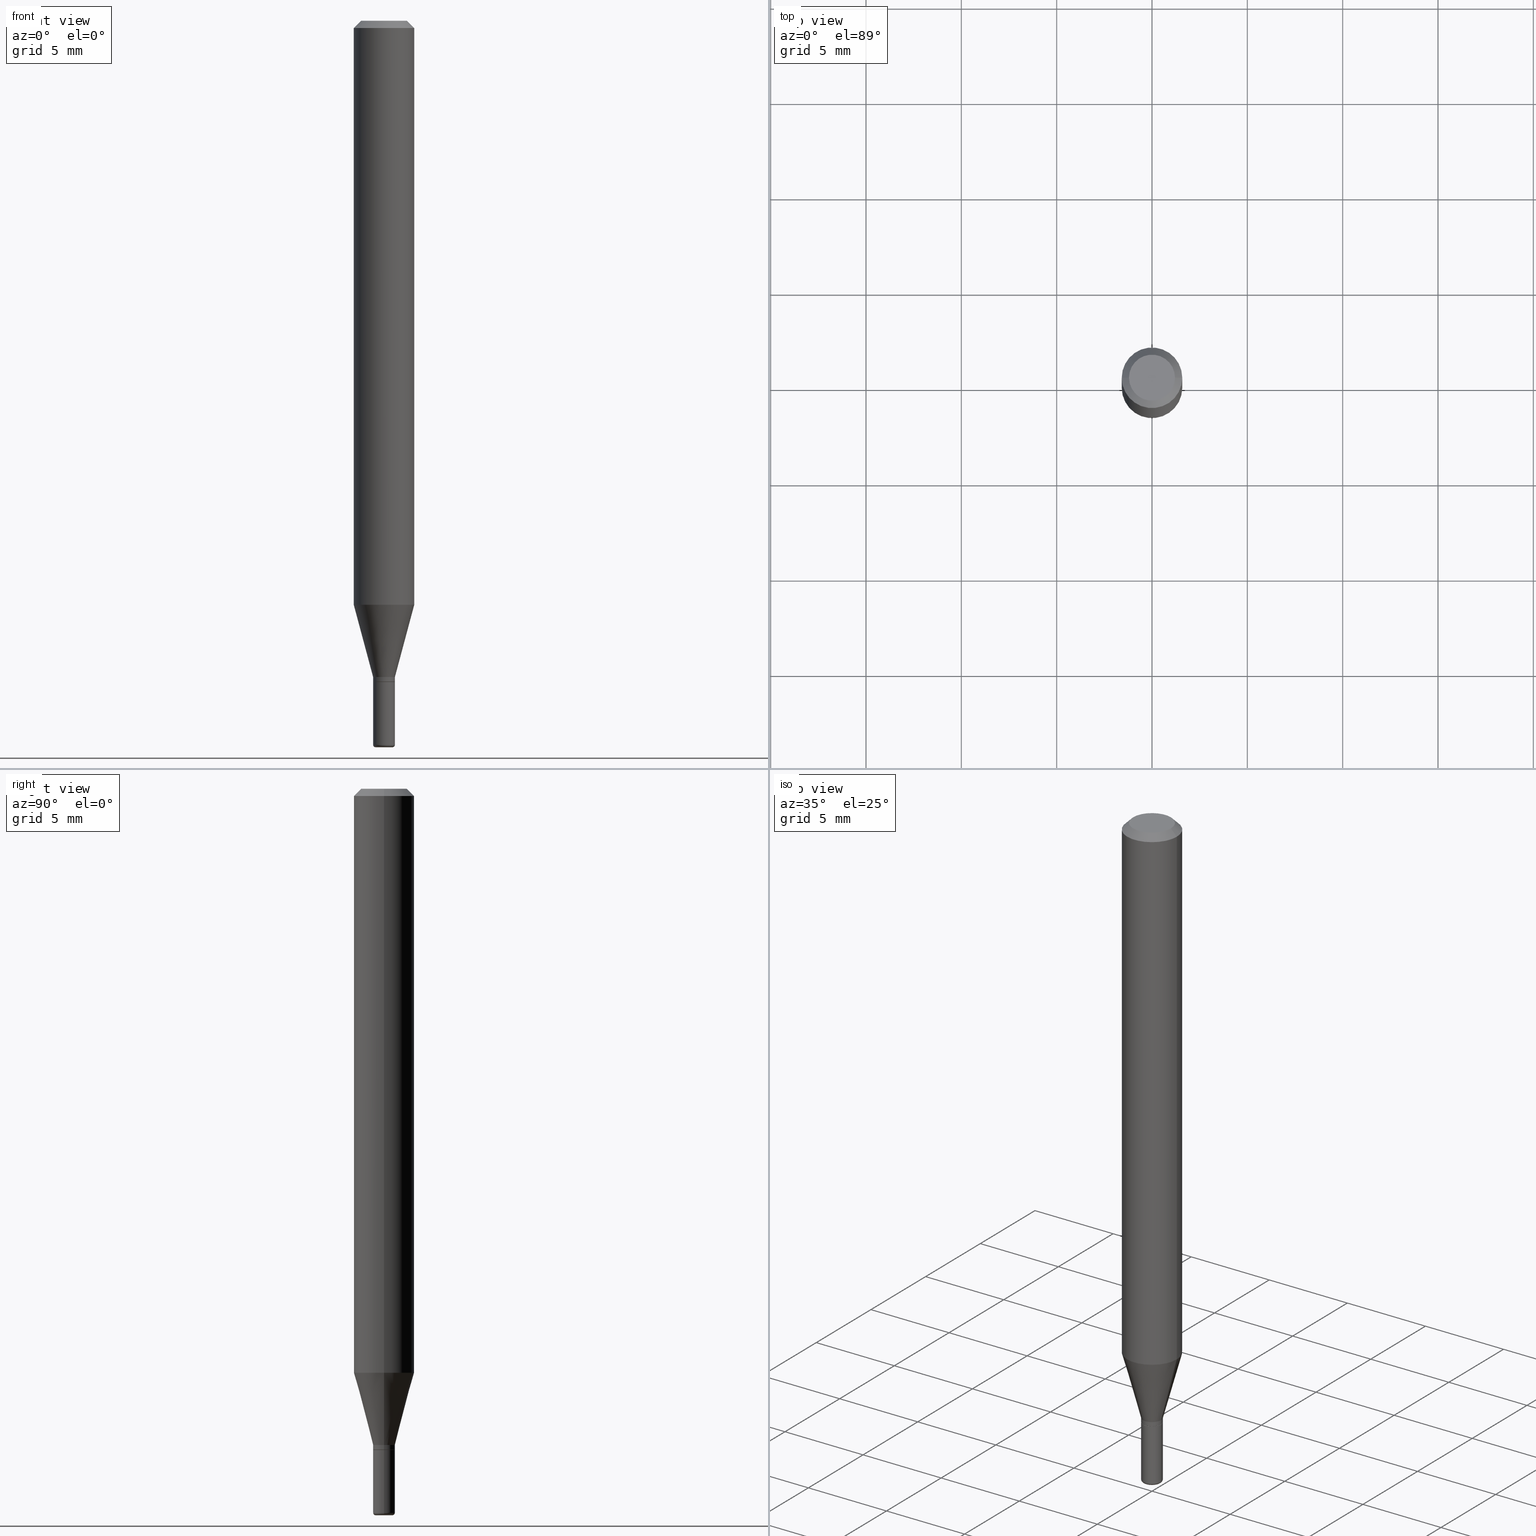
[diagram: canonical four-view strip — front | top / right | iso, engineering-drawing reading convention]
A machine part, canonical four-view strip (front | top / right | iso — engineering-drawing reading convention). The complete STEP part file that produces these views, byte-faithful:
ISO-10303-21;
HEADER;
FILE_DESCRIPTION (( 'STEP AP203' ),
    '1' );
FILE_NAME ('08659.STEP',
    '2024-02-29T20:13:11',
    ( '' ),
    ( '' ),
    'SwSTEP 2.0',
    'SolidWorks 2023',
    '' );
FILE_SCHEMA (( 'CONFIG_CONTROL_DESIGN' ));
ENDSEC;

DATA;
#1 = CARTESIAN_POINT ( 'NONE',  ( 0.02250000000000008937, -1.571166602479416074E-16, 1.097139774554090038E-30 ) ) ;
#2 = APPROVAL_STATUS ( 'not_yet_approved' ) ;
#3 = APPROVAL ( #197, 'UNSPECIFIED' ) ;
#4 = CARTESIAN_POINT ( 'NONE',  ( 3.668203209277706016E-29, -5.237222008264719754E-15, -1.500000000000000444 ) ) ;
#5 = EDGE_CURVE ( 'NONE', #264, #43, #458, .T. ) ;
#6 = CARTESIAN_POINT ( 'NONE',  ( -0.02250000000000008937, 1.598721155460231769E-16, -1.106760395307358334E-30 ) ) ;
#7 = FACE_OUTER_BOUND ( 'NONE', #393, .T. ) ;
#8 = AXIS2_PLACEMENT_3D ( 'NONE', #152, #119, #475 ) ;
#9 = AXIS2_PLACEMENT_3D ( 'NONE', #481, #484, #80 ) ;
#10 = PRODUCT_DEFINITION_FORMATION_WITH_SPECIFIED_SOURCE ( 'ANY', '', #272, .NOT_KNOWN. ) ;
#11 = CLOSED_SHELL ( 'NONE', ( #93, #512, #480, #128, #453, #417, #57, #116, #317, #242, #488, #399 ) ) ;
#12 = CARTESIAN_POINT ( 'NONE',  ( 3.316907271900976589E-16, 0.04750000000000000749, -2.925296391183627249E-17 ) ) ;
#13 = CARTESIAN_POINT ( 'NONE',  ( 3.655975865246779122E-29, -5.219764601570503141E-15, -1.495000000000000107 ) ) ;
#14 = DIRECTION ( 'NONE',  ( 2.438088387897960049E-29, -3.491481338843145188E-15, -1.000000000000000000 ) ) ;
#15 = EDGE_CURVE ( 'NONE', #339, #91, #364, .T. ) ;
#16 = DIRECTION ( 'NONE',  ( 1.000000000000000000, -6.982962677686286432E-15, 0.000000000000000000 ) ) ;
#17 = ADVANCED_BREP_SHAPE_REPRESENTATION ( '08659', ( #36, #371, #138 ), #376 ) ;
#18 = DIRECTION ( 'NONE',  ( -2.438088387897960049E-29, 3.491481338843145188E-15, 1.000000000000000000 ) ) ;
#19 = DIRECTION ( 'NONE',  ( 1.000000000000000000, -6.982962677686283277E-15, 0.000000000000000000 ) ) ;
#20 = CC_DESIGN_PERSON_AND_ORGANIZATION_ASSIGNMENT ( #471, #240, ( #10 ) ) ;
#21 = ORIENTED_EDGE ( 'NONE', *, *, #15, .F. ) ;
#22 = FACE_OUTER_BOUND ( 'NONE', #206, .T. ) ;
#23 = AXIS2_PLACEMENT_3D ( 'NONE', #250, #400, #41 ) ;
#24 = CC_DESIGN_APPROVAL ( #405, ( #10 ) ) ;
#25 = PERSON_AND_ORGANIZATION ( #223, #236 ) ;
#26 = ORIENTED_EDGE ( 'NONE', *, *, #143, .T. ) ;
#27 = DIRECTION ( 'NONE',  ( 1.000000000000000000, -6.982962677686265922E-15, 4.876176775795935793E-29 ) ) ;
#28 = CALENDAR_DATE ( 2024, 29, 2 ) ;
#29 = ORIENTED_EDGE ( 'NONE', *, *, #358, .F. ) ;
#30 = VECTOR ( 'NONE', #121, 39.37007874015748143 ) ;
#31 = SECURITY_CLASSIFICATION_LEVEL ( 'unclassified' ) ;
#32 = ORIENTED_EDGE ( 'NONE', *, *, #499, .F. ) ;
#33 = DATE_TIME_ROLE ( 'classification_date' ) ;
#34 = VERTEX_POINT ( 'NONE', #84 ) ;
#35 = DIRECTION ( 'NONE',  ( -2.445468806185136597E-29, 3.491481338843145583E-15, 1.000000000000000000 ) ) ;
#36 = MANIFOLD_SOLID_BREP ( 'Body-Move/Copy2[1]', #166 ) ;
#37 = CARTESIAN_POINT ( 'NONE',  ( 0.04750000000000000749, -4.035134999187568762E-16, 2.731847993664288856E-16 ) ) ;
#38 = AXIS2_PLACEMENT_3D ( 'NONE', #440, #437, #394 ) ;
#39 = DIRECTION ( 'NONE',  ( 0.2588190451025206840, 1.565188264969626504E-15, 0.9659258262890682012 ) ) ;
#40 = EDGE_CURVE ( 'NONE', #313, #43, #401, .T. ) ;
#41 = DIRECTION ( 'NONE',  ( 1.000000000000000000, -6.982962677686266711E-15, 0.000000000000000000 ) ) ;
#42 = CARTESIAN_POINT ( 'NONE',  ( -0.02249999999999999917, -4.832946198999675921E-15, -1.364999999999999991 ) ) ;
#43 = VERTEX_POINT ( 'NONE', #42 ) ;
#44 = LINE ( 'NONE', #284, #30 ) ;
#45 = DIRECTION ( 'NONE',  ( 1.000000000000000000, -6.982962677686250144E-15, 0.000000000000000000 ) ) ;
#46 = AXIS2_PLACEMENT_3D ( 'NONE', #123, #326, #253 ) ;
#47 = CARTESIAN_POINT ( 'NONE',  ( 3.336842186039618474E-29, -4.764126286851472566E-15, -1.364499999999999824 ) ) ;
#48 = EDGE_CURVE ( 'NONE', #112, #313, #192, .T. ) ;
#49 = FACE_OUTER_BOUND ( 'NONE', #309, .T. ) ;
#50 = CARTESIAN_POINT ( 'NONE',  ( 0.02200000000000008546, -4.919497206429991905E-15, -1.364999999999999991 ) ) ;
#51 = CIRCLE ( 'NONE', #156, 0.02250000000000008937 ) ;
#52 = APPROVAL_PERSON_ORGANIZATION ( #144, #94, #99 ) ;
#53 = EDGE_CURVE ( 'NONE', #106, #356, #478, .T. ) ;
#54 = EDGE_LOOP ( 'NONE', ( #251, #174 ) ) ;
#55 = CYLINDRICAL_SURFACE ( 'NONE', #199, 0.02250000000000008590 ) ;
#56 = DESIGN_CONTEXT ( 'detailed design', #154, 'design' ) ;
#57 = ADVANCED_FACE ( 'NONE', ( #135 ), #102, .T. ) ;
#58 = DIRECTION ( 'NONE',  ( -2.445468806185136877E-29, 3.491481338843145188E-15, 1.000000000000000000 ) ) ;
#59 = ORIENTED_EDGE ( 'NONE', *, *, #367, .F. ) ;
#60 = CARTESIAN_POINT ( 'NONE',  ( 3.338064920442711836E-29, -4.765872027520893280E-15, -1.364999999999999991 ) ) ;
#61 = VERTEX_POINT ( 'NONE', #145 ) ;
#62 = CIRCLE ( 'NONE', #474, 0.02250000000000008937 ) ;
#63 = CARTESIAN_POINT ( 'NONE',  ( 3.668203209277632395E-31, -5.237222008264614861E-17, -0.01499999999999970281 ) ) ;
#64 = ORIENTED_EDGE ( 'NONE', *, *, #193, .T. ) ;
#65 = ORIENTED_EDGE ( 'NONE', *, *, #299, .T. ) ;
#66 = EDGE_CURVE ( 'NONE', #339, #71, #62, .T. ) ;
#67 = DIRECTION ( 'NONE',  ( 1.000000000000000000, -6.982962677686261977E-15, 0.000000000000000000 ) ) ;
#68 = ORIENTED_EDGE ( 'NONE', *, *, #74, .T. ) ;
#69 = ORIENTED_EDGE ( 'NONE', *, *, #262, .F. ) ;
#70 = VECTOR ( 'NONE', #169, 39.37007874015748143 ) ;
#71 = VERTEX_POINT ( 'NONE', #327 ) ;
#72 = EDGE_CURVE ( 'NONE', #388, #339, #291, .T. ) ;
#73 = DIRECTION ( 'NONE',  ( -2.445468806185136597E-29, 3.491481338843145583E-15, 1.000000000000000000 ) ) ;
#74 = EDGE_CURVE ( 'NONE', #507, #464, #415, .T. ) ;
#75 = PERSON_AND_ORGANIZATION_ROLE ( 'creator' ) ;
#76 = FACE_OUTER_BOUND ( 'NONE', #302, .T. ) ;
#77 = COORDINATED_UNIVERSAL_TIME_OFFSET ( 5, 0, .BEHIND. ) ;
#78 = LINE ( 'NONE', #1, #305 ) ;
#79 = CONICAL_SURFACE ( 'NONE', #146, 0.02250000000000007896, 0.2617993877991494078 ) ;
#80 = DIRECTION ( 'NONE',  ( 1.000000000000000000, -6.982962677686255667E-15, 0.000000000000000000 ) ) ;
#81 = DIRECTION ( 'NONE',  ( -1.000000000000000000, 7.105427357601055501E-15, 0.000000000000000000 ) ) ;
#82 = EDGE_CURVE ( 'NONE', #313, #172, #392, .T. ) ;
#83 = DIRECTION ( 'NONE',  ( 1.000000000000000000, -6.982962677686261977E-15, 0.000000000000000000 ) ) ;
#84 = CARTESIAN_POINT ( 'NONE',  ( -0.02200000000000008546, -4.606903398479559111E-15, -1.364999999999999991 ) ) ;
#85 = FACE_OUTER_BOUND ( 'NONE', #386, .T. ) ;
#86 = DIRECTION ( 'NONE',  ( -2.445468806185136597E-29, 3.491481338843145583E-15, 1.000000000000000000 ) ) ;
#87 = VECTOR ( 'NONE', #286, 39.37007874015748143 ) ;
#88 = CC_DESIGN_APPROVAL ( #3, ( #468 ) ) ;
#89 = ADVANCED_FACE ( 'NONE', ( #254 ), #216, .T. ) ;
#90 = CARTESIAN_POINT ( 'NONE',  ( -0.06250000000000000000, -1.686967792252668322E-15, -0.01499999999999970281 ) ) ;
#91 = VERTEX_POINT ( 'NONE', #310 ) ;
#92 = FACE_OUTER_BOUND ( 'NONE', #337, .T. ) ;
#93 = ADVANCED_FACE ( 'NONE', ( #110 ), #97, .T. ) ;
#94 = APPROVAL ( #111, 'UNSPECIFIED' ) ;
#95 = DIRECTION ( 'NONE',  ( -2.445468806185136597E-29, 3.491481338843145583E-15, 1.000000000000000000 ) ) ;
#96 = VECTOR ( 'NONE', #487, 39.37007874015748143 ) ;
#97 = CYLINDRICAL_SURFACE ( 'NONE', #137, 0.02250000000000008590 ) ;
#98 = EDGE_CURVE ( 'NONE', #356, #464, #285, .T. ) ;
#99 = APPROVAL_ROLE ( '' ) ;
#100 = UNCERTAINTY_MEASURE_WITH_UNIT (LENGTH_MEASURE( 1.000000000000000082E-05 ), #308, 'distance_accuracy_value', 'NONE');
#101 = ORIENTED_EDGE ( 'NONE', *, *, #267, .T. ) ;
#102 = CYLINDRICAL_SURFACE ( 'NONE', #227, 0.06250000000000000000 ) ;
#103 = ORIENTED_EDGE ( 'NONE', *, *, #252, .F. ) ;
#104 = DIRECTION ( 'NONE',  ( 1.000000000000000000, -6.982962677686261977E-15, 0.000000000000000000 ) ) ;
#105 = CARTESIAN_POINT ( 'NONE',  ( 0.000000000000000000, 0.000000000000000000, 0.000000000000000000 ) ) ;
#106 = VERTEX_POINT ( 'NONE', #37 ) ;
#107 = EDGE_CURVE ( 'NONE', #106, #186, #283, .T. ) ;
#108 = CIRCLE ( 'NONE', #465, 0.01749999999999999820 ) ;
#109 = CONICAL_SURFACE ( 'NONE', #397, 0.02200000000000008546, 0.7853981633972775267 ) ;
#110 = FACE_OUTER_BOUND ( 'NONE', #439, .T. ) ;
#111 = APPROVAL_STATUS ( 'not_yet_approved' ) ;
#112 = VERTEX_POINT ( 'NONE', #366 ) ;
#113 = CARTESIAN_POINT ( 'NONE',  ( 0.000000000000000000, 0.000000000000000000, 0.000000000000000000 ) ) ;
#114 = ORIENTED_EDGE ( 'NONE', *, *, #82, .T. ) ;
#115 = ORIENTED_EDGE ( 'NONE', *, *, #143, .F. ) ;
#116 = ADVANCED_FACE ( 'NONE', ( #518 ), #340, .T. ) ;
#117 = DIRECTION ( 'NONE',  ( -2.445468806185136877E-29, 3.491481338843145188E-15, 1.000000000000000000 ) ) ;
#118 = VECTOR ( 'NONE', #39, 39.37007874015748854 ) ;
#119 = DIRECTION ( 'NONE',  ( 2.438088387897960049E-29, -3.491481338843145188E-15, -1.000000000000000000 ) ) ;
#120 = FACE_OUTER_BOUND ( 'NONE', #54, .T. ) ;
#121 = DIRECTION ( 'NONE',  ( -2.445468806185136877E-29, 3.491481338843145188E-15, 1.000000000000000000 ) ) ;
#122 = CIRCLE ( 'NONE', #23, 0.06250000000000000000 ) ;
#123 = CARTESIAN_POINT ( 'NONE',  ( 2.948545679060552191E-29, -4.209741784122815192E-15, -1.205717967697245596 ) ) ;
#124 = CARTESIAN_POINT ( 'NONE',  ( 0.02200000000000008546, -4.919497206429991905E-15, -1.364999999999999991 ) ) ;
#125 = CARTESIAN_POINT ( 'NONE',  ( -0.01749999999999999820, -5.095419622812485892E-15, -1.495000000000000107 ) ) ;
#126 = CARTESIAN_POINT ( 'NONE',  ( -0.02250000000000007896, -4.168368836429596353E-15, -1.355000000000000426 ) ) ;
#127 = ORIENTED_EDGE ( 'NONE', *, *, #72, .F. ) ;
#128 = ADVANCED_FACE ( 'NONE', ( #441 ), #321, .T. ) ;
#129 = DIRECTION ( 'NONE',  ( -6.982962677686266711E-15, -1.000000000000000000, 3.491481338843145583E-15 ) ) ;
#130 = DIRECTION ( 'NONE',  ( 1.000000000000000000, -6.982962677686286432E-15, 0.000000000000000000 ) ) ;
#131 = VECTOR ( 'NONE', #341, 39.37007874015748143 ) ;
#132 = CARTESIAN_POINT ( 'NONE',  ( 0.000000000000000000, 0.000000000000000000, 0.000000000000000000 ) ) ;
#133 = CARTESIAN_POINT ( 'NONE',  ( 0.06250000000000000000, -4.364351673553916694E-16, 3.047610484872459871E-30 ) ) ;
#134 = DIRECTION ( 'NONE',  ( -2.445468806185136597E-29, 3.491481338843145583E-15, 1.000000000000000000 ) ) ;
#135 = FACE_OUTER_BOUND ( 'NONE', #503, .T. ) ;
#136 = CARTESIAN_POINT ( 'NONE',  ( 3.338064920442711836E-29, -4.765872027520893280E-15, -1.364999999999999991 ) ) ;
#137 = AXIS2_PLACEMENT_3D ( 'NONE', #224, #383, #27 ) ;
#138 = AXIS2_PLACEMENT_3D ( 'NONE', #113, #277, #231 ) ;
#139 = ORIENTED_EDGE ( 'NONE', *, *, #48, .T. ) ;
#140 = DIRECTION ( 'NONE',  ( -2.445468806185136597E-29, 3.491481338843145583E-15, 1.000000000000000000 ) ) ;
#141 = ORIENTED_EDGE ( 'NONE', *, *, #328, .T. ) ;
#142 = ORIENTED_EDGE ( 'NONE', *, *, #516, .F. ) ;
#143 = EDGE_CURVE ( 'NONE', #91, #249, #435, .T. ) ;
#144 = PERSON_AND_ORGANIZATION ( #223, #236 ) ;
#145 = CARTESIAN_POINT ( 'NONE',  ( 0.01749999999999999820, -5.359423855124228949E-15, -1.500000000000000444 ) ) ;
#146 = AXIS2_PLACEMENT_3D ( 'NONE', #263, #86, #489 ) ;
#147 = DIRECTION ( 'NONE',  ( -2.445468806185136597E-29, 3.491481338843145583E-15, 1.000000000000000000 ) ) ;
#148 = ORIENTED_EDGE ( 'NONE', *, *, #82, .F. ) ;
#149 = CC_DESIGN_PERSON_AND_ORGANIZATION_ASSIGNMENT ( #25, #182, ( #485 ) ) ;
#150 = EDGE_CURVE ( 'NONE', #388, #34, #266, .T. ) ;
#151 = ORIENTED_EDGE ( 'NONE', *, *, #299, .F. ) ;
#152 = CARTESIAN_POINT ( 'NONE',  ( 1.571166602479743698E-16, 0.02249999999999523215, -1.364999999999999991 ) ) ;
#153 = ORIENTED_EDGE ( 'NONE', *, *, #160, .T. ) ;
#154 = APPLICATION_CONTEXT ( 'configuration controlled 3d designs of mechanical parts and assemblies' ) ;
#155 = CARTESIAN_POINT ( 'NONE',  ( 3.338064920442711836E-29, -4.765872027520893280E-15, -1.364999999999999991 ) ) ;
#156 = AXIS2_PLACEMENT_3D ( 'NONE', #47, #494, #372 ) ;
#157 = DIRECTION ( 'NONE',  ( -1.000000000000000000, 6.982962677686266711E-15, 0.000000000000000000 ) ) ;
#158 = COORDINATED_UNIVERSAL_TIME_OFFSET ( 5, 0, .BEHIND. ) ;
#159 = PLANE ( 'NONE',  #375 ) ;
#160 = EDGE_CURVE ( 'NONE', #356, #106, #235, .T. ) ;
#161 = PERSON_AND_ORGANIZATION ( #223, #236 ) ;
#162 = DIRECTION ( 'NONE',  ( 1.000000000000000000, -6.982962677686250144E-15, 0.000000000000000000 ) ) ;
#163 = AXIS2_PLACEMENT_3D ( 'NONE', #196, #395, #245 ) ;
#164 = DIRECTION ( 'NONE',  ( -2.445468806185136597E-29, 3.491481338843145583E-15, 1.000000000000000000 ) ) ;
#165 = AXIS2_PLACEMENT_3D ( 'NONE', #424, #229, #104 ) ;
#166 = CLOSED_SHELL ( 'NONE', ( #89, #276, #181, #234, #384, #287 ) ) ;
#167 = CARTESIAN_POINT ( 'NONE',  ( -0.04750000000000000749, 3.578768372314221353E-16, 2.731847993664239060E-16 ) ) ;
#168 = CARTESIAN_POINT ( 'NONE',  ( -0.06250000000000000000, 4.440892098500626162E-16, -3.074334431409316114E-30 ) ) ;
#169 = DIRECTION ( 'NONE',  ( -2.445468806185136877E-29, 3.491481338843145188E-15, 1.000000000000000000 ) ) ;
#170 = FACE_OUTER_BOUND ( 'NONE', #470, .T. ) ;
#171 = LOCAL_TIME ( 15, 13, 11.00000000000000000, #427 ) ;
#172 = VERTEX_POINT ( 'NONE', #515 ) ;
#173 = AXIS2_PLACEMENT_3D ( 'NONE', #125, #482, #81 ) ;
#174 = ORIENTED_EDGE ( 'NONE', *, *, #176, .T. ) ;
#175 = CARTESIAN_POINT ( 'NONE',  ( 3.313610232380861411E-29, -4.730957214132463998E-15, -1.355000000000000426 ) ) ;
#176 = EDGE_CURVE ( 'NONE', #43, #264, #178, .T. ) ;
#177 = CARTESIAN_POINT ( 'NONE',  ( -0.02200000000000008546, -4.609552625653671101E-15, -1.364999999999999991 ) ) ;
#178 = CIRCLE ( 'NONE', #256, 0.02249999999999999917 ) ;
#179 = LOCAL_TIME ( 15, 13, 11.00000000000000000, #273 ) ;
#180 = ORIENTED_EDGE ( 'NONE', *, *, #293, .T. ) ;
#181 = ADVANCED_FACE ( 'NONE', ( #120 ), #396, .F. ) ;
#182 = PERSON_AND_ORGANIZATION_ROLE ( 'creator' ) ;
#183 = ORIENTED_EDGE ( 'NONE', *, *, #53, .F. ) ;
#184 = DIRECTION ( 'NONE',  ( -2.445468806185136597E-29, 3.491481338843145583E-15, 1.000000000000000000 ) ) ;
#185 =( NAMED_UNIT ( * ) SI_UNIT ( $, .STERADIAN. ) SOLID_ANGLE_UNIT ( ) );
#186 = VERTEX_POINT ( 'NONE', #402 ) ;
#187 = DIRECTION ( 'NONE',  ( 1.000000000000000000, -6.982962677686261977E-15, 0.000000000000000000 ) ) ;
#188 = ORIENTED_EDGE ( 'NONE', *, *, #160, .F. ) ;
#189 = DIMENSIONAL_EXPONENTS ( 1.000000000000000000, 0.000000000000000000, 0.000000000000000000, 0.000000000000000000, 0.000000000000000000, 0.000000000000000000, 0.000000000000000000 ) ;
#190 = CIRCLE ( 'NONE', #9, 0.02250000000000017958 ) ;
#191 = ORIENTED_EDGE ( 'NONE', *, *, #66, .T. ) ;
#192 = CIRCLE ( 'NONE', #173, 0.005000000000000181383 ) ;
#193 = EDGE_CURVE ( 'NONE', #172, #264, #78, .T. ) ;
#194 = SHAPE_DEFINITION_REPRESENTATION ( #426, #17 ) ;
#195 = ORIENTED_EDGE ( 'NONE', *, *, #74, .F. ) ;
#196 = CARTESIAN_POINT ( 'NONE',  ( 0.000000000000000000, 0.000000000000000000, 0.000000000000000000 ) ) ;
#197 = APPROVAL_STATUS ( 'not_yet_approved' ) ;
#198 = DIRECTION ( 'NONE',  ( 1.000000000000000000, -6.982962677686265922E-15, 4.876176775795935793E-29 ) ) ;
#199 = AXIS2_PLACEMENT_3D ( 'NONE', #332, #454, #497 ) ;
#200 = EDGE_CURVE ( 'NONE', #71, #422, #44, .T. ) ;
#201 = DIRECTION ( 'NONE',  ( 1.000000000000000000, -6.982962677686269077E-15, 0.000000000000000000 ) ) ;
#202 = ORIENTED_EDGE ( 'NONE', *, *, #15, .T. ) ;
#203 = PERSON_AND_ORGANIZATION ( #223, #236 ) ;
#204 = CARTESIAN_POINT ( 'NONE',  ( 0.02249999999999999917, -4.922988687768834913E-15, -1.364999999999999991 ) ) ;
#205 = CC_DESIGN_DATE_AND_TIME_ASSIGNMENT ( #365, #33, ( #468 ) ) ;
#206 = EDGE_LOOP ( 'NONE', ( #275, #409, #237, #127 ) ) ;
#207 = CARTESIAN_POINT ( 'NONE',  ( 3.338064920442711836E-29, -4.765872027520893280E-15, -1.364999999999999991 ) ) ;
#208 = CIRCLE ( 'NONE', #486, 0.06250000000000000000 ) ;
#209 = CARTESIAN_POINT ( 'NONE',  ( 0.02250000000000008937, -4.921242947099413409E-15, -1.364499999999999824 ) ) ;
#210 = PLANE ( 'NONE',  #407 ) ;
#211 = ORIENTED_EDGE ( 'NONE', *, *, #200, .F. ) ;
#212 = DIRECTION ( 'NONE',  ( 1.000000000000000000, -6.982962677686270655E-15, 0.000000000000000000 ) ) ;
#213 = EDGE_LOOP ( 'NONE', ( #141, #139, #103, #29 ) ) ;
#214 = ORIENTED_EDGE ( 'NONE', *, *, #358, .T. ) ;
#215 = CARTESIAN_POINT ( 'NONE',  ( 3.668203209277706016E-29, -5.237222008264719754E-15, -1.500000000000000444 ) ) ;
#216 = TOROIDAL_SURFACE ( 'NONE', #281, 0.01749999999999999820, 0.005000000000000179648 ) ;
#217 = VECTOR ( 'NONE', #381, 39.37007874015748854 ) ;
#218 = CARTESIAN_POINT ( 'NONE',  ( -6.680649051745406845E-45, 9.538196290434862081E-31, 2.731847993664263218E-16 ) ) ;
#219 = AXIS2_PLACEMENT_3D ( 'NONE', #379, #134, #246 ) ;
#220 = DATE_AND_TIME ( #469, #179 ) ;
#221 = DIRECTION ( 'NONE',  ( -2.445468806185136597E-29, 3.491481338843145583E-15, 1.000000000000000000 ) ) ;
#222 = CC_DESIGN_DATE_AND_TIME_ASSIGNMENT ( #387, #344, ( #485 ) ) ;
#223 = PERSON ( 'UNSPECIFIED', 'UNSPECIFIED', 'UNSPECIFIED', ('UNSPECIFIED'), ('UNSPECIFIED'), ('UNSPECIFIED') ) ;
#224 = CARTESIAN_POINT ( 'NONE',  ( 0.000000000000000000, 0.000000000000000000, 0.000000000000000000 ) ) ;
#225 = EDGE_LOOP ( 'NONE', ( #315, #343, #429, #115 ) ) ;
#226 = ORIENTED_EDGE ( 'NONE', *, *, #200, .T. ) ;
#227 = AXIS2_PLACEMENT_3D ( 'NONE', #105, #428, #385 ) ;
#228 = APPROVAL_PERSON_ORGANIZATION ( #438, #405, #362 ) ;
#229 = DIRECTION ( 'NONE',  ( -2.445468806185136597E-29, 3.491481338843145583E-15, 1.000000000000000000 ) ) ;
#230 = ORIENTED_EDGE ( 'NONE', *, *, #269, .F. ) ;
#231 = DIRECTION ( 'NONE',  ( 1.000000000000000000, 0.000000000000000000, 0.000000000000000000 ) ) ;
#232 = ORIENTED_EDGE ( 'NONE', *, *, #72, .T. ) ;
#233 = ORIENTED_EDGE ( 'NONE', *, *, #367, .T. ) ;
#234 = ADVANCED_FACE ( 'NONE', ( #76 ), #514, .T. ) ;
#235 = CIRCLE ( 'NONE', #288, 0.04750000000000000749 ) ;
#236 = ORGANIZATION ( 'UNSPECIFIED', 'UNSPECIFIED', '' ) ;
#237 = ORIENTED_EDGE ( 'NONE', *, *, #66, .F. ) ;
#238 = CARTESIAN_POINT ( 'NONE',  ( 3.668203209277632395E-31, -5.237222008264614861E-17, -0.01499999999999970281 ) ) ;
#239 = VECTOR ( 'NONE', #483, 39.37007874015748143 ) ;
#240 = PERSON_AND_ORGANIZATION_ROLE ( 'design_supplier' ) ;
#241 = DIRECTION ( 'NONE',  ( 1.000000000000000000, -6.982962677686266711E-15, 4.852736867747365086E-29 ) ) ;
#242 = ADVANCED_FACE ( 'NONE', ( #359 ), #159, .F. ) ;
#243 = ORIENTED_EDGE ( 'NONE', *, *, #48, .F. ) ;
#244 = PERSON_AND_ORGANIZATION_ROLE ( 'classification_officer' ) ;
#245 = DIRECTION ( 'NONE',  ( 1.000000000000000000, -6.982962677686265922E-15, 4.876176775795936353E-29 ) ) ;
#246 = DIRECTION ( 'NONE',  ( 1.000000000000000000, -6.982962677686269077E-15, 0.000000000000000000 ) ) ;
#247 = CIRCLE ( 'NONE', #248, 0.06250000000000000000 ) ;
#248 = AXIS2_PLACEMENT_3D ( 'NONE', #490, #259, #408 ) ;
#249 = VERTEX_POINT ( 'NONE', #324 ) ;
#250 = CARTESIAN_POINT ( 'NONE',  ( 3.668203209277632395E-31, -5.237222008264614861E-17, -0.01499999999999970281 ) ) ;
#251 = ORIENTED_EDGE ( 'NONE', *, *, #5, .T. ) ;
#252 = EDGE_CURVE ( 'NONE', #172, #313, #190, .T. ) ;
#253 = DIRECTION ( 'NONE',  ( 1.000000000000000000, -6.982962677686270655E-15, 0.000000000000000000 ) ) ;
#254 = FACE_OUTER_BOUND ( 'NONE', #213, .T. ) ;
#255 = CARTESIAN_POINT ( 'NONE',  ( 2.948545679060552191E-29, -4.209741784122815192E-15, -1.205717967697245596 ) ) ;
#256 = AXIS2_PLACEMENT_3D ( 'NONE', #479, #35, #201 ) ;
#257 = CARTESIAN_POINT ( 'NONE',  ( -0.06250000000000000000, 3.840629472727455270E-16, -0.01499999999999970281 ) ) ;
#258 = APPROVAL_PERSON_ORGANIZATION ( #323, #3, #325 ) ;
#259 = DIRECTION ( 'NONE',  ( -2.445468806185136597E-29, 3.491481338843145583E-15, 1.000000000000000000 ) ) ;
#260 = DIRECTION ( 'NONE',  ( 1.000000000000000000, -6.982962677686265922E-15, 4.876176775795935793E-29 ) ) ;
#261 = EDGE_LOOP ( 'NONE', ( #180, #68, #390, #59 ) ) ;
#262 = EDGE_CURVE ( 'NONE', #464, #186, #122, .T. ) ;
#263 = CARTESIAN_POINT ( 'NONE',  ( 3.313610232380861411E-29, -4.730957214132463998E-15, -1.355000000000000426 ) ) ;
#264 = VERTEX_POINT ( 'NONE', #204 ) ;
#265 = DIRECTION ( 'NONE',  ( 1.000000000000000000, -6.982962677686265922E-15, 4.876176775795936353E-29 ) ) ;
#266 = CIRCLE ( 'NONE', #361, 0.02200000000000008546 ) ;
#267 = EDGE_CURVE ( 'NONE', #112, #61, #455, .T. ) ;
#268 = APPROVAL_DATE_TIME ( #220, #94 ) ;
#269 = EDGE_CURVE ( 'NONE', #507, #249, #333, .T. ) ;
#270 = LINE ( 'NONE', #177, #131 ) ;
#271 = CC_DESIGN_SECURITY_CLASSIFICATION ( #468, ( #10 ) ) ;
#272 = PRODUCT ( '08659', '08659', '', ( #421 ) ) ;
#273 = COORDINATED_UNIVERSAL_TIME_OFFSET ( 5, 0, .BEHIND. ) ;
#274 = CARTESIAN_POINT ( 'NONE',  ( 3.336842186039618474E-29, -4.764126286851472566E-15, -1.364499999999999824 ) ) ;
#275 = ORIENTED_EDGE ( 'NONE', *, *, #150, .T. ) ;
#276 = ADVANCED_FACE ( 'NONE', ( #85 ), #446, .T. ) ;
#277 = DIRECTION ( 'NONE',  ( 0.000000000000000000, 0.000000000000000000, 1.000000000000000000 ) ) ;
#278 = ORIENTED_EDGE ( 'NONE', *, *, #347, .F. ) ;
#279 = COORDINATED_UNIVERSAL_TIME_OFFSET ( 5, 0, .BEHIND. ) ;
#280 = CARTESIAN_POINT ( 'NONE',  ( -6.680649051745406845E-45, 9.538196290434862081E-31, 2.731847993664263218E-16 ) ) ;
#281 = AXIS2_PLACEMENT_3D ( 'NONE', #13, #184, #419 ) ;
#282 = CALENDAR_DATE ( 2024, 29, 2 ) ;
#283 = LINE ( 'NONE', #363, #87 ) ;
#284 = CARTESIAN_POINT ( 'NONE',  ( -0.02250000000000008590, 1.598721155460231522E-16, -1.106760395307357984E-30 ) ) ;
#285 = LINE ( 'NONE', #257, #517 ) ;
#286 = DIRECTION ( 'NONE',  ( 0.7071067811865479058, -7.319954787623257623E-15, -0.7071067811865471286 ) ) ;
#287 = ADVANCED_FACE ( 'NONE', ( #170 ), #210, .F. ) ;
#288 = AXIS2_PLACEMENT_3D ( 'NONE', #280, #318, #241 ) ;
#289 = CALENDAR_DATE ( 2024, 29, 2 ) ;
#290 = DIRECTION ( 'NONE',  ( -2.445468806185136597E-29, 3.491481338843145583E-15, 1.000000000000000000 ) ) ;
#291 = LINE ( 'NONE', #124, #96 ) ;
#292 = DIRECTION ( 'NONE',  ( -2.445468806185136877E-29, 3.491481338843145188E-15, 1.000000000000000000 ) ) ;
#293 = EDGE_CURVE ( 'NONE', #249, #507, #208, .T. ) ;
#294 = FACE_OUTER_BOUND ( 'NONE', #225, .T. ) ;
#295 = ORIENTED_EDGE ( 'NONE', *, *, #98, .T. ) ;
#296 = FACE_OUTER_BOUND ( 'NONE', #510, .T. ) ;
#297 = AXIS2_PLACEMENT_3D ( 'NONE', #378, #330, #336 ) ;
#298 = DIRECTION ( 'NONE',  ( -2.445468806185136597E-29, 3.491481338843145583E-15, 1.000000000000000000 ) ) ;
#299 = EDGE_CURVE ( 'NONE', #71, #339, #51, .T. ) ;
#300 = CARTESIAN_POINT ( 'NONE',  ( 3.655975865246779683E-29, -5.219764601570503930E-15, -1.495000000000000329 ) ) ;
#301 = PLANE ( 'NONE',  #434 ) ;
#302 = EDGE_LOOP ( 'NONE', ( #346, #114, #64, #403 ) ) ;
#303 = ORIENTED_EDGE ( 'NONE', *, *, #193, .F. ) ;
#304 = DIRECTION ( 'NONE',  ( -1.000000000000000000, 6.982962677686265922E-15, -4.876176775795935793E-29 ) ) ;
#305 = VECTOR ( 'NONE', #117, 39.37007874015748143 ) ;
#306 = PERSON_AND_ORGANIZATION_ROLE ( 'design_owner' ) ;
#307 = CIRCLE ( 'NONE', #351, 0.02250000000000007896 ) ;
#308 =( CONVERSION_BASED_UNIT ( 'INCH', #509 ) LENGTH_UNIT ( ) NAMED_UNIT ( #189 ) );
#309 = EDGE_LOOP ( 'NONE', ( #183, #467, #353, #425 ) ) ;
#310 = CARTESIAN_POINT ( 'NONE',  ( 0.02250000000000007896, -4.888073874380405630E-15, -1.355000000000000426 ) ) ;
#311 = DIRECTION ( 'NONE',  ( 2.445468806185136597E-29, -3.491481338843145583E-15, -1.000000000000000000 ) ) ;
#312 = ORIENTED_EDGE ( 'NONE', *, *, #262, .T. ) ;
#313 = VERTEX_POINT ( 'NONE', #404 ) ;
#314 = AXIS2_PLACEMENT_3D ( 'NONE', #132, #95, #265 ) ;
#315 = ORIENTED_EDGE ( 'NONE', *, *, #347, .T. ) ;
#316 = DIRECTION ( 'NONE',  ( -2.438088387897960049E-29, 3.491481338843145188E-15, 1.000000000000000000 ) ) ;
#317 = ADVANCED_FACE ( 'NONE', ( #418 ), #301, .F. ) ;
#318 = DIRECTION ( 'NONE',  ( -2.445468806185136597E-29, 3.491481338843145583E-15, 1.000000000000000000 ) ) ;
#319 = AXIS2_PLACEMENT_3D ( 'NONE', #4, #73, #162 ) ;
#320 = DATE_AND_TIME ( #354, #448 ) ;
#321 = CYLINDRICAL_SURFACE ( 'NONE', #38, 0.06250000000000000000 ) ;
#322 = CARTESIAN_POINT ( 'NONE',  ( 0.02250000000000008590, -1.571166602479415828E-16, 1.097139774554089687E-30 ) ) ;
#323 = PERSON_AND_ORGANIZATION ( #223, #236 ) ;
#324 = CARTESIAN_POINT ( 'NONE',  ( 0.06250000000000000000, -4.646176951478207651E-15, -1.205717967697245596 ) ) ;
#325 = APPROVAL_ROLE ( '' ) ;
#326 = DIRECTION ( 'NONE',  ( -2.445468806185136597E-29, 3.491481338843145583E-15, 1.000000000000000000 ) ) ;
#327 = CARTESIAN_POINT ( 'NONE',  ( -0.02250000000000008937, -4.604254171305447910E-15, -1.364499999999999824 ) ) ;
#328 = EDGE_CURVE ( 'NONE', #61, #112, #108, .T. ) ;
#329 = CC_DESIGN_APPROVAL ( #94, ( #485 ) ) ;
#330 = DIRECTION ( 'NONE',  ( -2.445468806185136597E-29, 3.491481338843145583E-15, 1.000000000000000000 ) ) ;
#331 = DIRECTION ( 'NONE',  ( 1.000000000000000000, -6.982962677686273810E-15, 0.000000000000000000 ) ) ;
#332 = CARTESIAN_POINT ( 'NONE',  ( 0.000000000000000000, 0.000000000000000000, 0.000000000000000000 ) ) ;
#333 = CIRCLE ( 'NONE', #46, 0.06250000000000000000 ) ;
#334 = CARTESIAN_POINT ( 'NONE',  ( 3.582686580359767159E-29, -5.359686688179454114E-15, -1.500000000000000444 ) ) ;
#335 = AXIS2_PLACEMENT_3D ( 'NONE', #218, #504, #495 ) ;
#336 = DIRECTION ( 'NONE',  ( 1.000000000000000000, -6.982962677686255667E-15, 4.883557194083108977E-29 ) ) ;
#337 = EDGE_LOOP ( 'NONE', ( #32, #451, #26, #230 ) ) ;
#338 = LINE ( 'NONE', #502, #217 ) ;
#339 = VERTEX_POINT ( 'NONE', #209 ) ;
#340 = CONICAL_SURFACE ( 'NONE', #508, 0.06250000000000000000, 0.7853981633974488341 ) ;
#341 = DIRECTION ( 'NONE',  ( -0.7071067811864267805, 7.493145998869918709E-15, 0.7071067811866682540 ) ) ;
#342 = CONICAL_SURFACE ( 'NONE', #369, 0.06250000000000000000, 0.7853981633974488341 ) ;
#343 = ORIENTED_EDGE ( 'NONE', *, *, #499, .T. ) ;
#344 = DATE_TIME_ROLE ( 'creation_date' ) ;
#345 = ORIENTED_EDGE ( 'NONE', *, *, #107, .F. ) ;
#346 = ORIENTED_EDGE ( 'NONE', *, *, #40, .F. ) ;
#347 = EDGE_CURVE ( 'NONE', #91, #422, #307, .T. ) ;
#348 = ORIENTED_EDGE ( 'NONE', *, *, #501, .T. ) ;
#349 =( LENGTH_UNIT ( ) NAMED_UNIT ( * ) SI_UNIT ( $, .METRE. ) );
#350 = ORIENTED_EDGE ( 'NONE', *, *, #267, .F. ) ;
#351 = AXIS2_PLACEMENT_3D ( 'NONE', #175, #370, #16 ) ;
#352 = LOCAL_TIME ( 15, 13, 11.00000000000000000, #77 ) ;
#353 = ORIENTED_EDGE ( 'NONE', *, *, #431, .T. ) ;
#354 = CALENDAR_DATE ( 2024, 29, 2 ) ;
#355 = ORIENTED_EDGE ( 'NONE', *, *, #328, .F. ) ;
#356 = VERTEX_POINT ( 'NONE', #167 ) ;
#357 = APPLICATION_CONTEXT ( 'configuration controlled 3d designs of mechanical parts and assemblies' ) ;
#358 = EDGE_CURVE ( 'NONE', #61, #172, #414, .T. ) ;
#359 = FACE_OUTER_BOUND ( 'NONE', #513, .T. ) ;
#360 = DIRECTION ( 'NONE',  ( -0.7071067811865479058, 2.468850131082261005E-15, -0.7071067811865471286 ) ) ;
#361 = AXIS2_PLACEMENT_3D ( 'NONE', #155, #290, #83 ) ;
#362 = APPROVAL_ROLE ( '' ) ;
#363 = CARTESIAN_POINT ( 'NONE',  ( 0.06250000000000000000, -4.811533449433669144E-16, -0.01499999999999970281 ) ) ;
#364 = LINE ( 'NONE', #322, #239 ) ;
#365 = DATE_AND_TIME ( #289, #476 ) ;
#366 = CARTESIAN_POINT ( 'NONE',  ( -0.01749999999999999820, -5.086384757765590495E-15, -1.500000000000000444 ) ) ;
#367 = EDGE_CURVE ( 'NONE', #249, #186, #410, .T. ) ;
#368 = VECTOR ( 'NONE', #58, 39.37007874015748143 ) ;
#369 = AXIS2_PLACEMENT_3D ( 'NONE', #63, #311, #463 ) ;
#370 = DIRECTION ( 'NONE',  ( -2.445468806185136597E-29, 3.491481338843145583E-15, 1.000000000000000000 ) ) ;
#371 = MANIFOLD_SOLID_BREP ( 'Body-Move/Copy2[2]', #11 ) ;
#372 = DIRECTION ( 'NONE',  ( 1.000000000000000000, -6.982962677686283277E-15, 0.000000000000000000 ) ) ;
#373 = ORIENTED_EDGE ( 'NONE', *, *, #406, .F. ) ;
#374 = CARTESIAN_POINT ( 'NONE',  ( 0.01749999999999999820, -5.341966448430012335E-15, -1.495000000000000107 ) ) ;
#375 = AXIS2_PLACEMENT_3D ( 'NONE', #207, #316, #198 ) ;
#376 =( GEOMETRIC_REPRESENTATION_CONTEXT ( 3 ) GLOBAL_UNCERTAINTY_ASSIGNED_CONTEXT ( ( #100 ) ) GLOBAL_UNIT_ASSIGNED_CONTEXT ( ( #308, #460, #185 ) ) REPRESENTATION_CONTEXT ( 'NONE', 'WORKASPACE' ) );
#377 = EDGE_LOOP ( 'NONE', ( #345, #188, #295, #312 ) ) ;
#378 = CARTESIAN_POINT ( 'NONE',  ( 3.655975865246779122E-29, -5.219764601570503141E-15, -1.495000000000000107 ) ) ;
#379 = CARTESIAN_POINT ( 'NONE',  ( 3.338064920442711836E-29, -4.765872027520893280E-15, -1.364999999999999991 ) ) ;
#380 = EDGE_LOOP ( 'NONE', ( #153, #505 ) ) ;
#381 = DIRECTION ( 'NONE',  ( -0.2588190451025206840, 5.211531920934545520E-15, 0.9659258262890682012 ) ) ;
#382 = CONICAL_SURFACE ( 'NONE', #416, 0.02200000000000008546, 0.7853981633972775267 ) ;
#383 = DIRECTION ( 'NONE',  ( -2.445468806185136597E-29, 3.491481338843145583E-15, 1.000000000000000000 ) ) ;
#384 = ADVANCED_FACE ( 'NONE', ( #7 ), #500, .T. ) ;
#385 = DIRECTION ( 'NONE',  ( 1.000000000000000000, -6.982962677686266711E-15, 4.876176775795935793E-29 ) ) ;
#386 = EDGE_LOOP ( 'NONE', ( #420, #413, #433, #303 ) ) ;
#387 = DATE_AND_TIME ( #28, #171 ) ;
#388 = VERTEX_POINT ( 'NONE', #50 ) ;
#389 = PRODUCT_RELATED_PRODUCT_CATEGORY ( 'detail', '', ( #272 ) ) ;
#390 = ORIENTED_EDGE ( 'NONE', *, *, #431, .F. ) ;
#391 = CC_DESIGN_PERSON_AND_ORGANIZATION_ASSIGNMENT ( #466, #306, ( #272 ) ) ;
#392 = CIRCLE ( 'NONE', #442, 0.02250000000000017958 ) ;
#393 = EDGE_LOOP ( 'NONE', ( #243, #101, #214, #148 ) ) ;
#394 = DIRECTION ( 'NONE',  ( 1.000000000000000000, -6.982962677686266711E-15, 4.876176775795935793E-29 ) ) ;
#395 = DIRECTION ( 'NONE',  ( -2.445468806185136597E-29, 3.491481338843145583E-15, 1.000000000000000000 ) ) ;
#396 = PLANE ( 'NONE',  #8 ) ;
#397 = AXIS2_PLACEMENT_3D ( 'NONE', #136, #140, #187 ) ;
#398 = DATE_AND_TIME ( #282, #352 ) ;
#399 = ADVANCED_FACE ( 'NONE', ( #296 ), #55, .T. ) ;
#400 = DIRECTION ( 'NONE',  ( -2.445468806185136597E-29, 3.491481338843145583E-15, 1.000000000000000000 ) ) ;
#401 = LINE ( 'NONE', #6, #450 ) ;
#402 = CARTESIAN_POINT ( 'NONE',  ( 0.06250000000000000000, -4.888073874380378612E-16, -0.01499999999999970281 ) ) ;
#403 = ORIENTED_EDGE ( 'NONE', *, *, #176, .F. ) ;
#404 = CARTESIAN_POINT ( 'NONE',  ( -0.02250000000000017958, -4.832946198999673555E-15, -1.495000000000000329 ) ) ;
#405 = APPROVAL ( #2, 'UNSPECIFIED' ) ;
#406 = EDGE_CURVE ( 'NONE', #422, #91, #423, .T. ) ;
#407 = AXIS2_PLACEMENT_3D ( 'NONE', #334, #18, #260 ) ;
#408 = DIRECTION ( 'NONE',  ( 1.000000000000000000, -6.982962677686266711E-15, 0.000000000000000000 ) ) ;
#409 = ORIENTED_EDGE ( 'NONE', *, *, #516, .T. ) ;
#410 = LINE ( 'NONE', #133, #70 ) ;
#411 = DIRECTION ( 'NONE',  ( 1.000000000000000000, -6.982962677686255667E-15, 0.000000000000000000 ) ) ;
#412 = DIRECTION ( 'NONE',  ( -2.445468806185136597E-29, 3.491481338843145583E-15, 1.000000000000000000 ) ) ;
#413 = ORIENTED_EDGE ( 'NONE', *, *, #40, .T. ) ;
#414 = CIRCLE ( 'NONE', #447, 0.005000000000000181383 ) ;
#415 = LINE ( 'NONE', #168, #368 ) ;
#416 = AXIS2_PLACEMENT_3D ( 'NONE', #60, #147, #67 ) ;
#417 = ADVANCED_FACE ( 'NONE', ( #92 ), #79, .T. ) ;
#418 = FACE_OUTER_BOUND ( 'NONE', #380, .T. ) ;
#419 = DIRECTION ( 'NONE',  ( 1.000000000000000000, -6.982962677686255667E-15, 4.883557194083108977E-29 ) ) ;
#420 = ORIENTED_EDGE ( 'NONE', *, *, #252, .T. ) ;
#421 = MECHANICAL_CONTEXT ( 'NONE', #357, 'mechanical' ) ;
#422 = VERTEX_POINT ( 'NONE', #126 ) ;
#423 = CIRCLE ( 'NONE', #492, 0.02250000000000007896 ) ;
#424 = CARTESIAN_POINT ( 'NONE',  ( 3.338064920442711836E-29, -4.765872027520893280E-15, -1.364999999999999991 ) ) ;
#425 = ORIENTED_EDGE ( 'NONE', *, *, #98, .F. ) ;
#426 = PRODUCT_DEFINITION_SHAPE ( 'NONE', 'NONE',  #485 ) ;
#427 = COORDINATED_UNIVERSAL_TIME_OFFSET ( 5, 0, .BEHIND. ) ;
#428 = DIRECTION ( 'NONE',  ( -2.445468806185136597E-29, 3.491481338843145583E-15, 1.000000000000000000 ) ) ;
#429 = ORIENTED_EDGE ( 'NONE', *, *, #293, .F. ) ;
#430 = CC_DESIGN_PERSON_AND_ORGANIZATION_ASSIGNMENT ( #203, #244, ( #468 ) ) ;
#431 = EDGE_CURVE ( 'NONE', #186, #464, #247, .T. ) ;
#432 = APPLICATION_PROTOCOL_DEFINITION ( 'international standard', 'config_control_design', 1994, #154 ) ;
#433 = ORIENTED_EDGE ( 'NONE', *, *, #5, .F. ) ;
#434 = AXIS2_PLACEMENT_3D ( 'NONE', #12, #14, #304 ) ;
#435 = LINE ( 'NONE', #443, #118 ) ;
#436 = APPROVAL_DATE_TIME ( #398, #405 ) ;
#437 = DIRECTION ( 'NONE',  ( -2.445468806185136597E-29, 3.491481338843145583E-15, 1.000000000000000000 ) ) ;
#438 = PERSON_AND_ORGANIZATION ( #223, #236 ) ;
#439 = EDGE_LOOP ( 'NONE', ( #191, #226, #278, #21 ) ) ;
#440 = CARTESIAN_POINT ( 'NONE',  ( 0.000000000000000000, 0.000000000000000000, 0.000000000000000000 ) ) ;
#441 = FACE_OUTER_BOUND ( 'NONE', #261, .T. ) ;
#442 = AXIS2_PLACEMENT_3D ( 'NONE', #300, #221, #411 ) ;
#443 = CARTESIAN_POINT ( 'NONE',  ( 0.02250000000000007896, -4.888073874380405630E-15, -1.355000000000000426 ) ) ;
#444 = CARTESIAN_POINT ( 'NONE',  ( 3.313610232380861411E-29, -4.730957214132463998E-15, -1.355000000000000426 ) ) ;
#445 = ORIENTED_EDGE ( 'NONE', *, *, #501, .F. ) ;
#446 = CYLINDRICAL_SURFACE ( 'NONE', #314, 0.02250000000000008937 ) ;
#447 = AXIS2_PLACEMENT_3D ( 'NONE', #374, #129, #331 ) ;
#448 = LOCAL_TIME ( 15, 13, 11.00000000000000000, #279 ) ;
#449 = DIRECTION ( 'NONE',  ( 1.000000000000000000, -6.982962677686286432E-15, 0.000000000000000000 ) ) ;
#450 = VECTOR ( 'NONE', #292, 39.37007874015748143 ) ;
#451 = ORIENTED_EDGE ( 'NONE', *, *, #406, .T. ) ;
#452 = DIRECTION ( 'NONE',  ( -2.445468806185136597E-29, 3.491481338843145583E-15, 1.000000000000000000 ) ) ;
#453 = ADVANCED_FACE ( 'NONE', ( #294 ), #456, .T. ) ;
#454 = DIRECTION ( 'NONE',  ( -2.445468806185136597E-29, 3.491481338843145583E-15, 1.000000000000000000 ) ) ;
#455 = CIRCLE ( 'NONE', #319, 0.01749999999999999820 ) ;
#456 = CONICAL_SURFACE ( 'NONE', #511, 0.02250000000000007896, 0.2617993877991494078 ) ;
#457 = APPLICATION_PROTOCOL_DEFINITION ( 'international standard', 'config_control_design', 1994, #357 ) ;
#458 = CIRCLE ( 'NONE', #219, 0.02249999999999999917 ) ;
#459 = CC_DESIGN_PERSON_AND_ORGANIZATION_ASSIGNMENT ( #161, #75, ( #10 ) ) ;
#460 =( NAMED_UNIT ( * ) PLANE_ANGLE_UNIT ( ) SI_UNIT ( $, .RADIAN. ) );
#461 = EDGE_LOOP ( 'NONE', ( #142, #348, #232, #151 ) ) ;
#462 = ORIENTED_EDGE ( 'NONE', *, *, #269, .T. ) ;
#463 = DIRECTION ( 'NONE',  ( -1.000000000000000000, 6.982962677686266711E-15, 0.000000000000000000 ) ) ;
#464 = VERTEX_POINT ( 'NONE', #90 ) ;
#465 = AXIS2_PLACEMENT_3D ( 'NONE', #215, #164, #45 ) ;
#466 = PERSON_AND_ORGANIZATION ( #223, #236 ) ;
#467 = ORIENTED_EDGE ( 'NONE', *, *, #107, .T. ) ;
#468 = SECURITY_CLASSIFICATION ( '', '', #31 ) ;
#469 = CALENDAR_DATE ( 2024, 29, 2 ) ;
#470 = EDGE_LOOP ( 'NONE', ( #355, #350 ) ) ;
#471 = PERSON_AND_ORGANIZATION ( #223, #236 ) ;
#472 = ORIENTED_EDGE ( 'NONE', *, *, #150, .F. ) ;
#473 = DIRECTION ( 'NONE',  ( 2.445468806185136597E-29, -3.491481338843145583E-15, -1.000000000000000000 ) ) ;
#474 = AXIS2_PLACEMENT_3D ( 'NONE', #274, #496, #19 ) ;
#475 = DIRECTION ( 'NONE',  ( -1.000000000000000000, 6.982962677686265922E-15, -4.876176775795935793E-29 ) ) ;
#476 = LOCAL_TIME ( 15, 13, 11.00000000000000000, #158 ) ;
#477 = APPROVAL_DATE_TIME ( #320, #3 ) ;
#478 = CIRCLE ( 'NONE', #335, 0.04750000000000000749 ) ;
#479 = CARTESIAN_POINT ( 'NONE',  ( 3.338064920442711836E-29, -4.765872027520893280E-15, -1.364999999999999991 ) ) ;
#480 = ADVANCED_FACE ( 'NONE', ( #49 ), #342, .T. ) ;
#481 = CARTESIAN_POINT ( 'NONE',  ( 3.655975865246779683E-29, -5.219764601570503930E-15, -1.495000000000000329 ) ) ;
#482 = DIRECTION ( 'NONE',  ( 7.105427357601001859E-15, 1.000000000000000000, -3.491481338843145583E-15 ) ) ;
#483 = DIRECTION ( 'NONE',  ( -2.445468806185136877E-29, 3.491481338843145188E-15, 1.000000000000000000 ) ) ;
#484 = DIRECTION ( 'NONE',  ( -2.445468806185136597E-29, 3.491481338843145583E-15, 1.000000000000000000 ) ) ;
#485 = PRODUCT_DEFINITION ( 'UNKNOWN', '', #10, #56 ) ;
#486 = AXIS2_PLACEMENT_3D ( 'NONE', #255, #412, #212 ) ;
#487 = DIRECTION ( 'NONE',  ( 0.7071067811864267805, -2.468850131080992517E-15, 0.7071067811866682540 ) ) ;
#488 = ADVANCED_FACE ( 'NONE', ( #506 ), #382, .T. ) ;
#489 = DIRECTION ( 'NONE',  ( 1.000000000000000000, -6.982962677686286432E-15, 0.000000000000000000 ) ) ;
#490 = CARTESIAN_POINT ( 'NONE',  ( 3.668203209277632395E-31, -5.237222008264614861E-17, -0.01499999999999970281 ) ) ;
#491 = CARTESIAN_POINT ( 'NONE',  ( 3.313610232380861411E-29, -4.730957214132463998E-15, -1.355000000000000426 ) ) ;
#492 = AXIS2_PLACEMENT_3D ( 'NONE', #491, #452, #130 ) ;
#493 = CIRCLE ( 'NONE', #165, 0.02200000000000008546 ) ;
#494 = DIRECTION ( 'NONE',  ( -2.445468806185136597E-29, 3.491481338843145583E-15, 1.000000000000000000 ) ) ;
#495 = DIRECTION ( 'NONE',  ( 1.000000000000000000, -6.982962677686266711E-15, 4.852736867747365086E-29 ) ) ;
#496 = DIRECTION ( 'NONE',  ( -2.445468806185136597E-29, 3.491481338843145583E-15, 1.000000000000000000 ) ) ;
#497 = DIRECTION ( 'NONE',  ( 1.000000000000000000, -6.982962677686265922E-15, 4.876176775795935793E-29 ) ) ;
#498 = CARTESIAN_POINT ( 'NONE',  ( -0.06250000000000000000, -3.765652574272752576E-15, -1.205717967697245596 ) ) ;
#499 = EDGE_CURVE ( 'NONE', #422, #507, #338, .T. ) ;
#500 = TOROIDAL_SURFACE ( 'NONE', #297, 0.01749999999999999820, 0.005000000000000179648 ) ;
#501 = EDGE_CURVE ( 'NONE', #34, #388, #493, .T. ) ;
#502 = CARTESIAN_POINT ( 'NONE',  ( -0.02250000000000007896, -4.571085098586440920E-15, -1.355000000000000426 ) ) ;
#503 = EDGE_LOOP ( 'NONE', ( #195, #462, #233, #69 ) ) ;
#504 = DIRECTION ( 'NONE',  ( -2.445468806185136597E-29, 3.491481338843145583E-15, 1.000000000000000000 ) ) ;
#505 = ORIENTED_EDGE ( 'NONE', *, *, #53, .T. ) ;
#506 = FACE_OUTER_BOUND ( 'NONE', #461, .T. ) ;
#507 = VERTEX_POINT ( 'NONE', #498 ) ;
#508 = AXIS2_PLACEMENT_3D ( 'NONE', #238, #473, #157 ) ;
#509 = LENGTH_MEASURE_WITH_UNIT ( LENGTH_MEASURE( 0.02539999999999999897 ), #349 );
#510 = EDGE_LOOP ( 'NONE', ( #211, #65, #202, #373 ) ) ;
#511 = AXIS2_PLACEMENT_3D ( 'NONE', #444, #298, #449 ) ;
#512 = ADVANCED_FACE ( 'NONE', ( #22 ), #109, .T. ) ;
#513 = EDGE_LOOP ( 'NONE', ( #472, #445 ) ) ;
#514 = CYLINDRICAL_SURFACE ( 'NONE', #163, 0.02250000000000008937 ) ;
#515 = CARTESIAN_POINT ( 'NONE',  ( 0.02250000000000017958, -5.376881261818446351E-15, -1.495000000000000329 ) ) ;
#516 = EDGE_CURVE ( 'NONE', #34, #71, #270, .T. ) ;
#517 = VECTOR ( 'NONE', #360, 39.37007874015748143 ) ;
#518 = FACE_OUTER_BOUND ( 'NONE', #377, .T. ) ;
ENDSEC;
END-ISO-10303-21;
